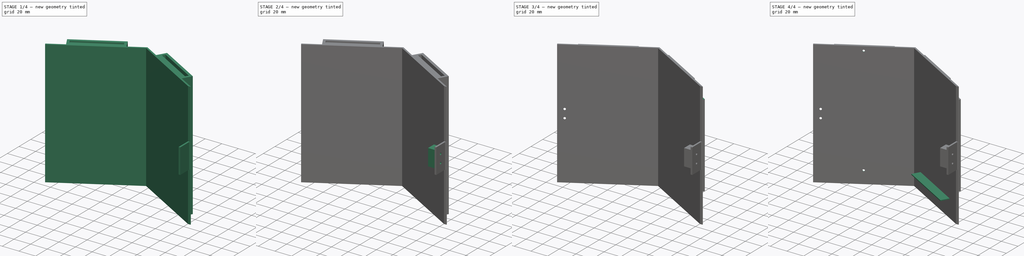
[diagram: build sequence overview — one tinted view per stage of 4, left to right]
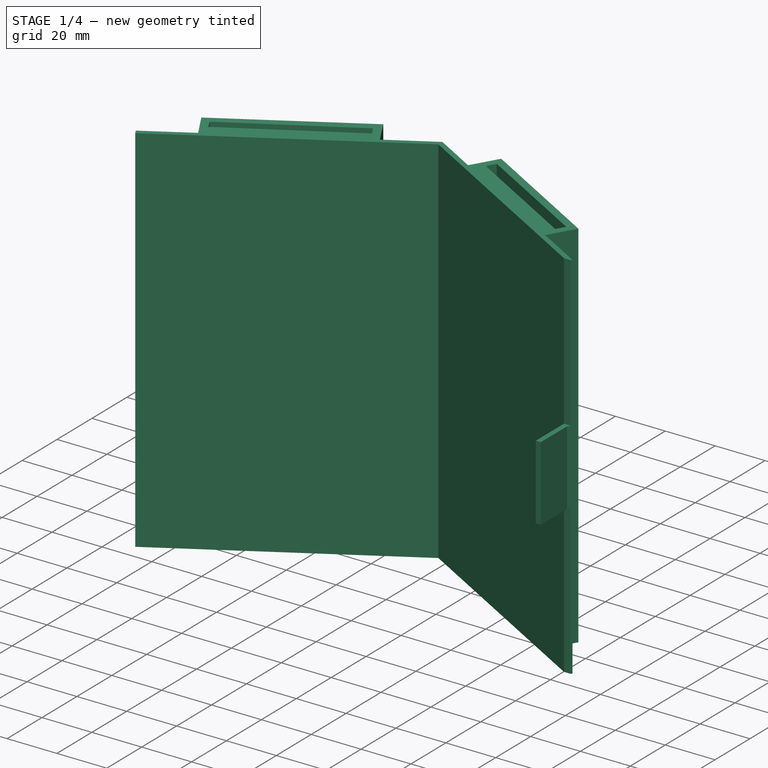
[diagram: stage 1 of 4 — iso view after this stage's code; geometry added in this stage tinted green]
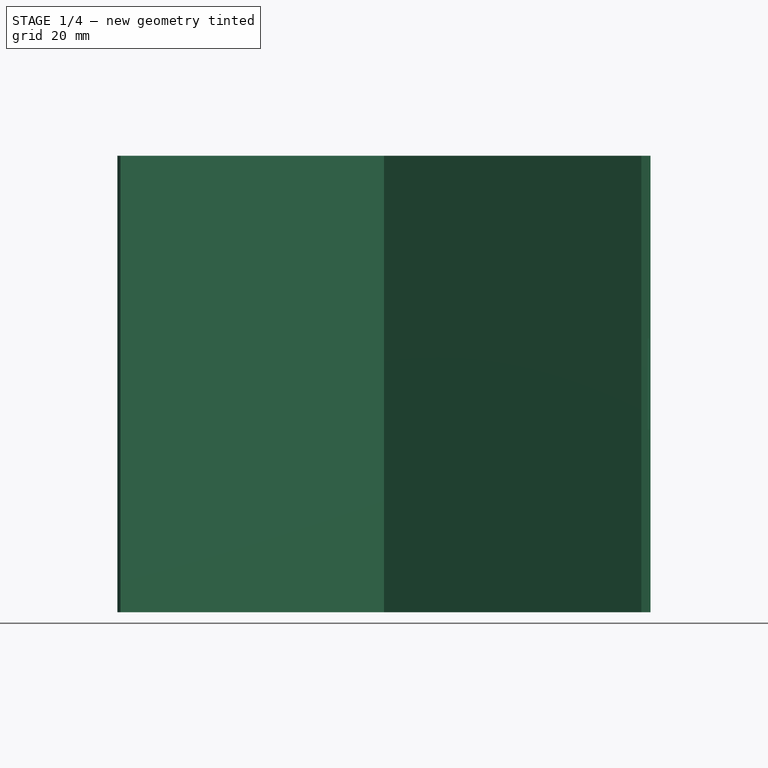
[diagram: stage 1 of 4 — front view after this stage's code; geometry added in this stage tinted green]
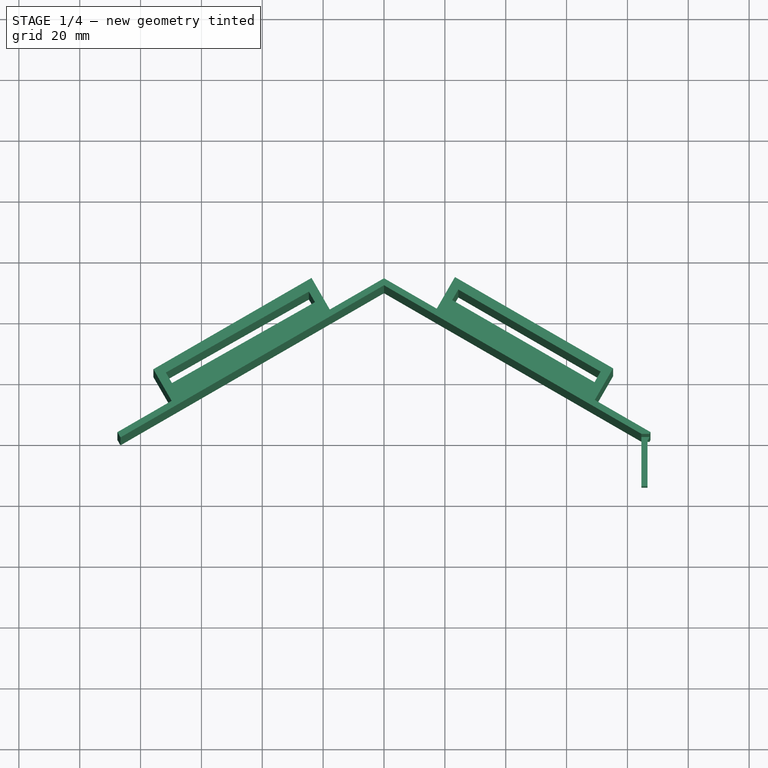
[diagram: stage 1 of 4 — top view after this stage's code; geometry added in this stage tinted green]
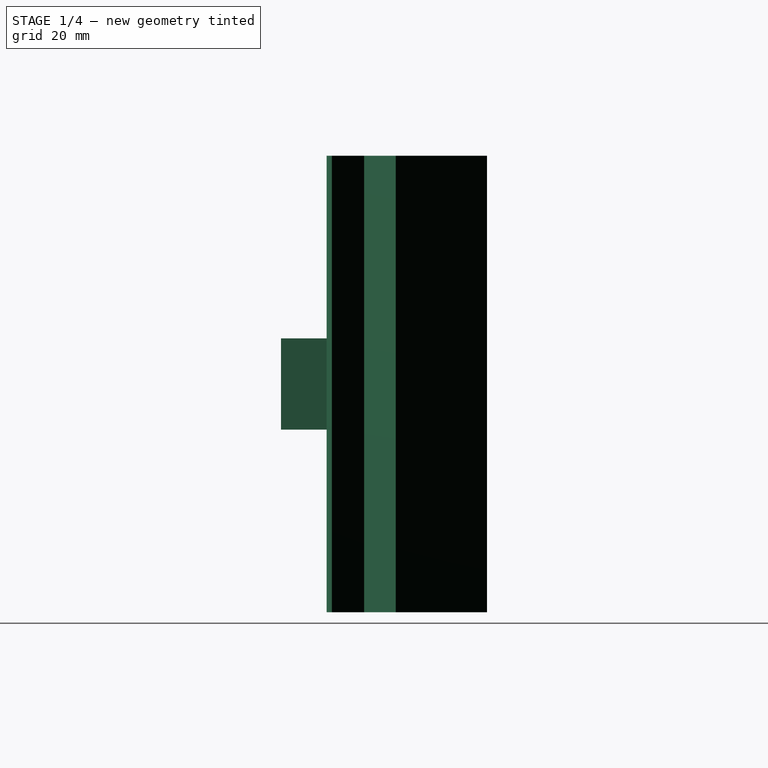
[diagram: stage 1 of 4 — right view after this stage's code; geometry added in this stage tinted green]
FCSTD DOCUMENT  (FreeCAD 0.20R29177 +426 (Git))
Label: classifier_middle_verPartial3
License: All rights reserved
LicenseURL: https://en.wikipedia.org/wiki/All_rights_reserved
objects: Sketcher::SketchObject×11, PartDesign::Pad×3, PartDesign::Pocket×3, PartDesign::CoordinateSystem×3, PartDesign::Hole×3, PartDesign::Body×1
note: 33 computed .brp shape members not serialized (recipe doc carries the construction recipe); baked Part::Feature solids carry a one-line shape summary decoded from their .brp

FEATURE [Sketcher::SketchObject] Sketch
  FullyConstrained = false
  MapMode = 5
  Support = -> [XY_Plane]
  sketch-geometry (40):
    g0: LineSegment StartX=84.6025 StartY=1.1547 StartZ=0 EndX=0 EndY=50 EndZ=0
    g1: LineSegment StartX=0 StartY=50 StartZ=0 EndX=-86.6025 EndY=-1.42e-14 EndZ=0
    g2: Circle CenterX=-2.18504 CenterY=-45.0607 CenterZ=0 NormalX=0 NormalY=0 NormalZ=1 AngleXU=0 Radius=95.0858
    g3: LineSegment StartX=87.6025 StartY=1.73205 StartZ=0 EndX=69.282 EndY=12.3094 EndZ=0
    g4: LineSegment StartX=0 StartY=52.3094 StartZ=0 EndX=-17.8205 EndY=42.0207 EndZ=0
    g5: Circle CenterX=-2.18504 CenterY=-45.0607 CenterZ=0 NormalX=0 NormalY=0 NormalZ=1 AngleXU=0 Radius=97.3946
    g6: GeomPoint X=-43.8013 Y=27.0207 Z=0
    g7: LineSegment StartX=-69.782 StartY=12.0207 StartZ=0 EndX=-75.782 EndY=22.413 EndZ=0
    g8: LineSegment StartX=-75.782 StartY=22.413 StartZ=0 EndX=-23.8205 EndY=52.413 EndZ=0
    g9: LineSegment StartX=-23.8205 StartY=52.413 StartZ=0 EndX=-17.8205 EndY=42.0207 EndZ=0
    g10: LineSegment StartX=-71.684 StartY=21.315 StartZ=0 EndX=-69.684 EndY=17.8509 EndZ=0
    g11: LineSegment StartX=-69.684 StartY=17.8509 StartZ=0 EndX=-22.6865 EndY=44.4489 EndZ=0
    g12: LineSegment StartX=-22.6865 StartY=44.4489 StartZ=0 EndX=-24.6865 EndY=47.913 EndZ=0
    g13: LineSegment StartX=-24.6865 StartY=47.913 StartZ=0 EndX=-71.684 EndY=21.315 EndZ=0
    g14: LineSegment StartX=-23.8205 StartY=52.413 StartZ=0 EndX=-22.0885 EndY=49.413 EndZ=0
    g15: LineSegment StartX=-26.4186 StartY=50.913 StartZ=0 EndX=-24.6865 EndY=47.913 EndZ=0
    g16: LineSegment StartX=-24.6865 StartY=47.913 StartZ=0 EndX=-22.0885 EndY=49.413 EndZ=0
    g17: LineSegment StartX=-23.8205 StartY=52.413 StartZ=0 EndX=-26.4186 EndY=50.913 EndZ=0
    g18: LineSegment StartX=-71.684 StartY=21.315 StartZ=0 EndX=-73.184 EndY=23.913 EndZ=0
    g19: LineSegment StartX=-71.684 StartY=21.315 StartZ=0 EndX=-74.282 EndY=19.815 EndZ=0
    g20: LineSegment StartX=75.282 StartY=22.7017 StartZ=0 EndX=69.282 EndY=12.3094 EndZ=0
    g21: LineSegment StartX=23.3205 StartY=52.7017 StartZ=0 EndX=75.282 EndY=22.7017 EndZ=0
    g22: LineSegment StartX=72.684 StartY=24.2017 StartZ=0 EndX=71.184 EndY=21.6036 EndZ=0
    g23: LineSegment StartX=71.184 StartY=21.6036 StartZ=0 EndX=73.782 EndY=20.1036 EndZ=0
    g24: LineSegment StartX=69.184 StartY=18.1395 StartZ=0 EndX=71.184 EndY=21.6036 EndZ=0
    g25: LineSegment StartX=71.184 StartY=21.6036 StartZ=0 EndX=24.4186 EndY=48.6036 EndZ=0
    g26: LineSegment StartX=22.4186 StartY=45.1395 StartZ=0 EndX=69.184 EndY=18.1395 EndZ=0
    g27: LineSegment StartX=24.4186 StartY=48.6036 StartZ=0 EndX=22.4186 EndY=45.1395 EndZ=0
    g28: LineSegment StartX=24.4186 StartY=48.6036 StartZ=0 EndX=25.9186 EndY=51.2017 EndZ=0
    g29: LineSegment StartX=24.4186 StartY=48.6036 StartZ=0 EndX=21.8205 EndY=50.1036 EndZ=0
    g30: LineSegment StartX=17.3205 StartY=42.3094 StartZ=0 EndX=23.3205 EndY=52.7017 EndZ=0
    g31: LineSegment StartX=17.3205 StartY=42.3094 StartZ=0 EndX=0 EndY=52.3094 EndZ=0
    g32: LineSegment StartX=86.6025 StartY=0 StartZ=0 EndX=86.6025 EndY=-15 EndZ=0
    g33: LineSegment StartX=86.6025 StartY=-15 StartZ=0 EndX=84.6025 EndY=-15 EndZ=0
    g34: LineSegment StartX=84.6025 StartY=-15 StartZ=0 EndX=84.6025 EndY=1.1547 EndZ=0
    g35: LineSegment StartX=-86.6025 StartY=0 StartZ=0 EndX=-87.6025 EndY=1.73205 EndZ=0
    g36: LineSegment StartX=-87.6025 StartY=1.73205 StartZ=0 EndX=-69.782 EndY=12.0207 EndZ=0
    g37: LineSegment StartX=84.6025 StartY=1.1547 StartZ=0 EndX=86.6025 EndY=0 EndZ=0
    g38: LineSegment StartX=87.6025 StartY=1.73205 StartZ=0 EndX=86.6025 EndY=0 EndZ=0
    g39: LineSegment StartX=0 StartY=50 StartZ=0 EndX=1 EndY=51.7321 EndZ=0
  constraints (114):
    c: PointOnObject(g0,g2)
    c: Coincident(g31,g4)
    c: PointOnObject(g31,g5)
    c: PointOnObject(g31,g-2)
    c: Parallel(g1,g4)
    c: Coincident(g2,g5)
    c: Coincident(g7,g8)
    c: Coincident(g8,g9)
    c: Parallel(g7,g9)
    c: Distance(g9) = 12
    c: Equal(g7,g9)
    c: Distance(g8) = 60
    c: Symmetric(g9,g7,g6)
    c: Coincident(g10,g11)
    c: Coincident(g11,g12)
    c: Coincident(g13,g10)
    c: Parallel(g12,g10)
    c: Parallel(g10,g7)
    c: Parallel(g11,g13)
    c: Coincident(g14,g8)
    c: PointOnObject(g15,g8)
    c: Coincident(g15,g12)
    c: Equal(g15,g14)
    c: Coincident(g13,g12)
    c: Parallel(g15,g14)
    c: DistanceY(g14,g14) = 3
    c: Coincident(g16,g12)
    c: Coincident(g16,g14)
    c: Coincident(g17,g8)
    c: Distance(g17) = 3
    c: Equal(g16,g17)
    c: Parallel(g17,g16)
    c: PointOnObject(g16,g9)
    c: Coincident(g18,g10)
    c: PointOnObject(g18,g8)
    c: Coincident(g19,g10)
    c: PointOnObject(g19,g7)
    c: Parallel(g18,g7)
    c: Parallel(g8,g19)
    c: Distance(g18) = 3
    c: Distance(g19) = 3
    c: Distance(g12) = 4
    c: Coincident(g30,g21)
    c: Coincident(g21,g20)
    c: Parallel(g30,g20)
    c: Distance(g20) = 12
    c: Equal(g30,g20)
    c: Distance(g21) = 60
    c: Coincident(g27,g26)
    c: Coincident(g26,g24)
    c: Coincident(g25,g27)
    c: Parallel(g24,g27)
    c: Parallel(g27,g30)
    c: Parallel(g26,g25)
    c: PointOnObject(g22,g21)
    c: Coincident(g22,g24)
    c: Coincident(g25,g24)
    c: Coincident(g23,g24)
    c: PointOnObject(g23,g20)
    c: Coincident(g28,g27)
    c: PointOnObject(g28,g21)
    c: Coincident(g29,g27)
    c: PointOnObject(g29,g30)
    c: Parallel(g28,g30)
    c: Parallel(g21,g29)
    c: Distance(g28) = 3
    c: Distance(g29) = 3
    c: Distance(g24) = 4
    c: Parallel(g23,g21)
    c: Parallel(g22,g20)
    c: Parallel(g25,g21)
    c: Equal(g23,g29)
    c: Vertical(g32)
    c: Coincident(g33,g32)
    c: Horizontal(g33)
    c: Coincident(g34,g33)
    c: Vertical(g34)
    c: Coincident(g0,g34)
    c: Distance(g31) = 20
    c: Distance(g32,g0) = 100
    c: Perpendicular(g8,g9)
    c: Coincident(g35,g1)
    c: Distance(g35) = 2
    c: Perpendicular(g35,g1)
    c: PointOnObject(g35,g5)
    c: Coincident(g4,g9)
    c: Coincident(g36,g35)
    c: Coincident(g36,g7)
    c: Perpendicular(g35,g36)
    c: Equal(g4,g36)
    c: Coincident(g37,g0)
    c: Coincident(g38,g3)
    c: Coincident(g38,g37)
    c: Distance(g38) = 2
    c: Perpendicular(g3,g20)
    c: Coincident(g3,g20)
    c: Parallel(g37,g3)
    c: Parallel(g0,g31)
    c: Coincident(g30,g31)
    c: Coincident(g0,g1)
    c: PointOnObject(g0,g-2)
    c: Perpendicular(g24,g25)
    c: PointOnObject(g38,g-1)
    c: Perpendicular(g37,g38)
    c: Coincident(g39,g0)
    c: PointOnObject(g39,g31)
    c: Perpendicular(g39,g0)
    c: Distance(g39) = 2
    c: Angle(g-2,g0) = 1.0472
    c: Coincident(g32,g38)
    c: PointOnObject(g1,g-1)
    c: Distance(g1) = 100
    c: DistanceX(g33,g33) = 2
    c: DistanceY(g32,g32) = 15
FEATURE [PartDesign::Pad] Pad
  Direction = (0,0,1)
  Length = 150
  Length2 = 10
  Profile = -> Sketch
  ReferenceAxis = -> Sketch [N_Axis]
  Refine = true
  Type = 0
FEATURE [Sketcher::SketchObject] Sketch001
  ExternalGeometry = -> [Pad]
  FullyConstrained = false
  MapMode = 5
  Placement = pos=(84.6025,0,0) rot=(0.57735,-0.57735,-0.57735;2.0944rad)
  Support = -> [Pad]
  sketch-geometry (8):
    g0: LineSegment StartX=31.3251 StartY=0 StartZ=0 EndX=-1.1547 EndY=0 EndZ=0
    g1: LineSegment StartX=-1.1547 StartY=0 StartZ=0 EndX=-1.1547 EndY=60 EndZ=0
    g2: LineSegment StartX=-1.1547 StartY=60 StartZ=0 EndX=31.3251 EndY=60 EndZ=0
    g3: LineSegment StartX=31.3251 StartY=60 StartZ=0 EndX=31.3251 EndY=0 EndZ=0
    g4: LineSegment StartX=-1.1547 StartY=150 StartZ=0 EndX=35.4561 EndY=150 EndZ=0
    g5: LineSegment StartX=35.4561 StartY=150 StartZ=0 EndX=35.4561 EndY=90 EndZ=0
    g6: LineSegment StartX=35.4561 StartY=90 StartZ=0 EndX=-1.1547 EndY=90 EndZ=0
    g7: LineSegment StartX=-1.1547 StartY=90 StartZ=0 EndX=-1.1547 EndY=150 EndZ=0
  constraints (21):
    c: Coincident(g0,g1)
    c: Coincident(g1,g2)
    c: Coincident(g2,g3)
    c: Coincident(g3,g0)
    c: Horizontal(g0)
    c: Horizontal(g2)
    c: Vertical(g1)
    c: Vertical(g3)
    c: PointOnObject(g0,g-1)
    c: PointOnObject(g1,g-6)
    c: DistanceY(g3,g3) = 60
    c: Coincident(g4,g5)
    c: Coincident(g5,g6)
    c: Coincident(g6,g7)
    c: Coincident(g7,g4)
    c: Horizontal(g4)
    c: Horizontal(g6)
    c: Vertical(g5)
    c: Vertical(g7)
    c: Coincident(g4,g-6)
    c: DistanceY(g5,g5) = 60
FEATURE [PartDesign::Pocket] Pocket
  BaseFeature = -> Pad
  Direction = (1,0,0)
  Length = 5
  Length2 = 5
  Profile = -> Sketch001
  ReferenceAxis = -> Sketch001 [N_Axis]
  Type = 0
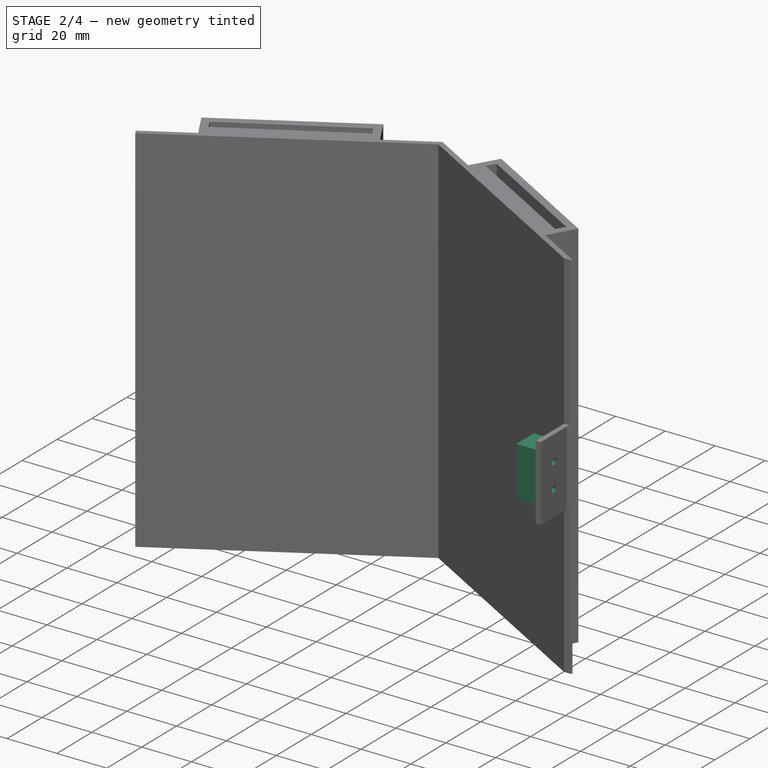
[diagram: stage 2 of 4 — iso view after this stage's code; geometry added in this stage tinted green]
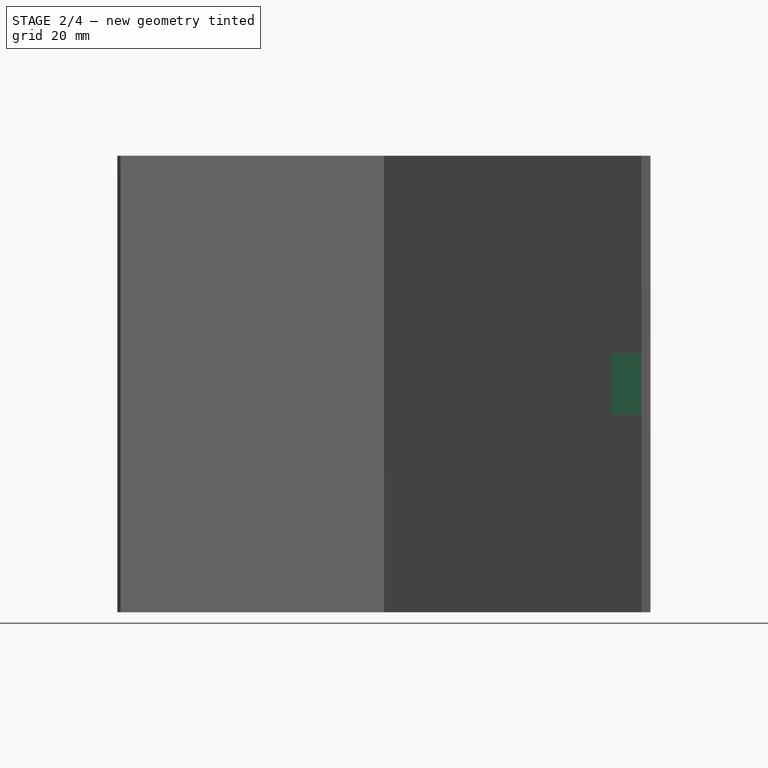
[diagram: stage 2 of 4 — front view after this stage's code; geometry added in this stage tinted green]
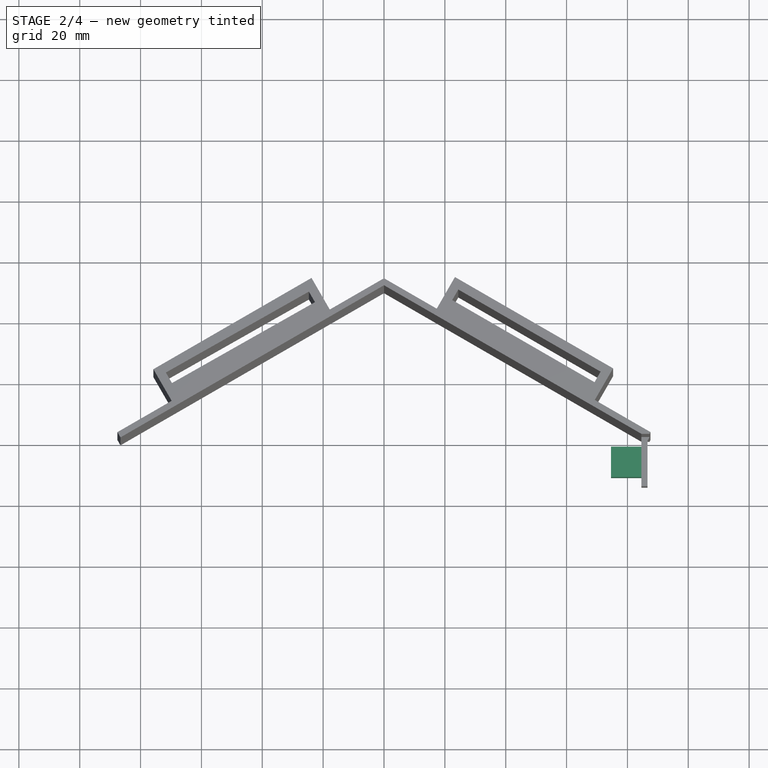
[diagram: stage 2 of 4 — top view after this stage's code; geometry added in this stage tinted green]
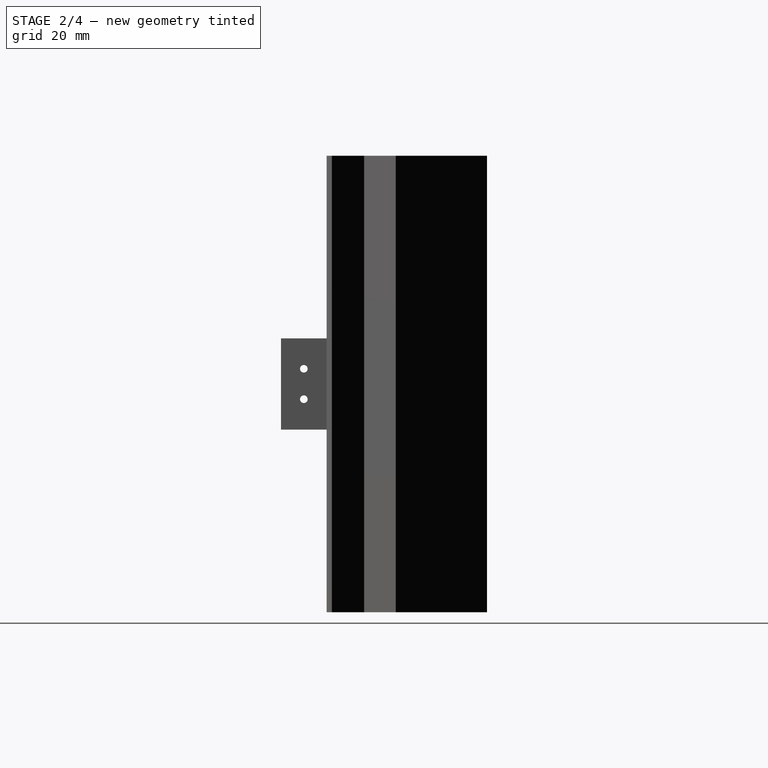
[diagram: stage 2 of 4 — right view after this stage's code; geometry added in this stage tinted green]
FEATURE [PartDesign::CoordinateSystem] LCS_1
  AttacherType = Attacher::AttachEngine3D
  AttachmentOffset = pos=(0,0,75) rot=(0,0,1;2.0944rad)
  MapMode = 45
  Placement = pos=(0,50,150) rot=(0,0,1;2.0944rad)
  Support = -> [Pocket]
FEATURE [Sketcher::SketchObject] Sketch002
  ExternalGeometry = -> [Pocket]
  FullyConstrained = true
  MapMode = 5
  Placement = pos=(86.6025,0,0) rot=(0.57735,0.57735,0.57735;2.0944rad)
  Support = -> [Pocket]
  sketch-geometry (3):
    g0: Circle CenterX=-7.5 CenterY=80 CenterZ=0 NormalX=0 NormalY=0 NormalZ=1 AngleXU=0 Radius=3
    g1: Circle CenterX=-7.5 CenterY=70 CenterZ=0 NormalX=0 NormalY=0 NormalZ=1 AngleXU=0 Radius=3
    g2: GeomPoint X=-7.5 Y=75 Z=0
  constraints (9):
    c: Symmetric(g-3,g-4,g2)
    c: Symmetric(g0,g1,g2)
    c: DistanceY(g-4,g1) = 10
    c: Equal(g1,g0)
    c: Diameter(g0) = 6
    c: Vertical(g1,g0)
    c: DistanceX(g1,g-4) = 7.5
    c: DistanceY(g-1,g1) = 70
    c: DistanceY(g1,g0) = 10
FEATURE [Sketcher::SketchObject] Sketch003
  ExternalGeometry = -> [Pocket]
  FullyConstrained = true
  MapMode = 5
  Placement = pos=(-22.6506,39.2321,0) rot=(-0.186157,0.694747,0.694747;3.50969rad)
  Support = -> [Pocket]
  sketch-geometry (2):
    g0: Circle CenterX=67.5 CenterY=80 CenterZ=0 NormalX=0 NormalY=0 NormalZ=1 AngleXU=0 Radius=3
    g1: Circle CenterX=67.5 CenterY=70 CenterZ=0 NormalX=0 NormalY=0 NormalZ=1 AngleXU=0 Radius=3
  constraints (6):
    c: Equal(g0,g1)
    c: Diameter(g0) = 6
    c: Vertical(g0,g1)
    c: DistanceX(g1,g-4) = 7.5
    c: DistanceY(g-4,g1) = 70
    c: DistanceY(g1,g0) = 10
FEATURE [Sketcher::SketchObject] Sketch004
  ExternalGeometry = -> [Pocket]
  FullyConstrained = true
  MapMode = 5
  Placement = pos=(-21.6506,37.5,0) rot=(0.935113,0.250563,0.250563;1.63783rad)
  Support = -> [Pocket]
  sketch-geometry (7):
    g0: GeomPoint X=-67.5 Y=70 Z=0
    g1: GeomPoint X=-67.5 Y=80 Z=0
    g2: GeomPoint X=-67.5 Y=75 Z=0
    g3: LineSegment StartX=-72.5 StartY=85 StartZ=0 EndX=-62.5 EndY=85 EndZ=0
    g4: LineSegment StartX=-62.5 StartY=85 StartZ=0 EndX=-62.5 EndY=65 EndZ=0
    g5: LineSegment StartX=-62.5 StartY=65 StartZ=0 EndX=-72.5 EndY=65 EndZ=0
    g6: LineSegment StartX=-72.5 StartY=65 StartZ=0 EndX=-72.5 EndY=85 EndZ=0
  constraints (16):
    c: Vertical(g0,g1)
    c: DistanceY(g0,g1) = 10
    c: DistanceY(g-1,g0) = 70
    c: Symmetric(g1,g0,g2)
    c: DistanceX(g-3,g2) = 7.5
    c: Coincident(g3,g4)
    c: Coincident(g4,g5)
    c: Coincident(g5,g6)
    c: Coincident(g6,g3)
    c: Horizontal(g3)
    c: Horizontal(g5)
    c: Vertical(g4)
    c: Vertical(g6)
    c: Symmetric(g4,g3,g2)
    c: DistanceY(g4,g4) = 20
    c: DistanceX(g3,g3) = 10
FEATURE [Sketcher::SketchObject] Sketch005
  ExternalGeometry = -> [Pocket]
  FullyConstrained = false
  MapMode = 5
  Placement = pos=(28.6506,49.6244,0) rot=(0.186157,0.694747,0.694747;2.77349rad)
  Support = -> [Pocket]
  sketch-geometry (8):
    g0: LineSegment StartX=-63.2639 StartY=150 StartZ=0 EndX=17.1472 EndY=150 EndZ=0
    g1: LineSegment StartX=17.1472 StartY=150 StartZ=0 EndX=17.1472 EndY=125 EndZ=0
    g2: LineSegment StartX=17.1472 StartY=125 StartZ=0 EndX=-63.2639 EndY=125 EndZ=0
    g3: LineSegment StartX=-63.2639 StartY=125 StartZ=0 EndX=-63.2639 EndY=150 EndZ=0
    g4: LineSegment StartX=-62.0783 StartY=25 StartZ=0 EndX=16.1272 EndY=25 EndZ=0
    g5: LineSegment StartX=16.1272 StartY=25 StartZ=0 EndX=16.1272 EndY=0 EndZ=0
    g6: LineSegment StartX=16.1272 StartY=0 StartZ=0 EndX=-62.0783 EndY=0 EndZ=0
    g7: LineSegment StartX=-62.0783 StartY=0 StartZ=0 EndX=-62.0783 EndY=25 EndZ=0
  constraints (20):
    c: Coincident(g0,g1)
    c: Coincident(g1,g2)
    c: Coincident(g2,g3)
    c: Coincident(g3,g0)
    c: Horizontal(g0)
    c: Horizontal(g2)
    c: Vertical(g1)
    c: Vertical(g3)
    c: Coincident(g4,g5)
    c: Coincident(g5,g6)
    c: Coincident(g6,g7)
    c: Coincident(g7,g4)
    c: Horizontal(g4)
    c: Horizontal(g6)
    c: Vertical(g5)
    c: Vertical(g7)
    c: Horizontal(g-3,g0)
    c: DistanceY(g1,g1) = 25
    c: DistanceY(g5,g5) = 25
    c: Horizontal(g5,g-1)
FEATURE [Sketcher::SketchObject] Sketch006
  ExternalGeometry = -> [Pocket]
  FullyConstrained = false
  MapMode = 5
  Placement = pos=(-28.6506,49.6244,0) rot=(-0.186157,0.694747,0.694747;3.50969rad)
  Support = -> [Pocket]
  sketch-geometry (8):
    g0: LineSegment StartX=-12.5353 StartY=150 StartZ=0 EndX=61.9692 EndY=150 EndZ=0
    g1: LineSegment StartX=61.9692 StartY=150 StartZ=0 EndX=61.9692 EndY=125 EndZ=0
    g2: LineSegment StartX=61.9692 StartY=125 StartZ=0 EndX=-12.5353 EndY=125 EndZ=0
    g3: LineSegment StartX=-12.5353 StartY=125 StartZ=0 EndX=-12.5353 EndY=150 EndZ=0
    g4: LineSegment StartX=-12.3717 StartY=25 StartZ=0 EndX=60.4768 EndY=25 EndZ=0
    g5: LineSegment StartX=60.4768 StartY=25 StartZ=0 EndX=60.4768 EndY=0 EndZ=0
    g6: LineSegment StartX=60.4768 StartY=0 StartZ=0 EndX=-12.3717 EndY=0 EndZ=0
    g7: LineSegment StartX=-12.3717 StartY=0 StartZ=0 EndX=-12.3717 EndY=25 EndZ=0
  constraints (20):
    c: Coincident(g0,g1)
    c: Coincident(g1,g2)
    c: Coincident(g2,g3)
    c: Coincident(g3,g0)
    c: Horizontal(g0)
    c: Horizontal(g2)
    c: Vertical(g1)
    c: Vertical(g3)
    c: Coincident(g4,g5)
    c: Coincident(g5,g6)
    c: Coincident(g6,g7)
    c: Coincident(g7,g4)
    c: Horizontal(g4)
    c: Horizontal(g6)
    c: Vertical(g5)
    c: Vertical(g7)
    c: Equal(g5,g1)
    c: DistanceY(g1,g1) = 25
    c: Horizontal(g-1,g5)
    c: Horizontal(g0,g-3)
FEATURE [Sketcher::SketchObject] Sketch007
  ExternalGeometry = -> [Pocket]
  FullyConstrained = true
  MapMode = 5
  Placement = pos=(84.6025,0,0) rot=(0.57735,-0.57735,-0.57735;2.0944rad)
  Support = -> [Pocket]
  sketch-geometry (5):
    g0: LineSegment StartX=1.92265 StartY=85 StartZ=0 EndX=11.9226 EndY=85 EndZ=0
    g1: LineSegment StartX=11.9226 StartY=85 StartZ=0 EndX=11.9226 EndY=65 EndZ=0
    g2: LineSegment StartX=11.9226 StartY=65 StartZ=0 EndX=1.92265 EndY=65 EndZ=0
    g3: LineSegment StartX=1.92265 StartY=65 StartZ=0 EndX=1.92265 EndY=85 EndZ=0
    g4: GeomPoint X=6.92265 Y=75 Z=0
  constraints (12):
    c: Coincident(g0,g1)
    c: Coincident(g1,g2)
    c: Coincident(g2,g3)
    c: Coincident(g3,g0)
    c: Horizontal(g0)
    c: Horizontal(g2)
    c: Vertical(g1)
    c: Vertical(g3)
    c: Symmetric(g-3,g-4,g4)
    c: Symmetric(g0,g2,g4)
    c: DistanceY(g1,g1) = 20
    c: DistanceX(g0,g0) = 10
FEATURE [Sketcher::SketchObject] Sketch009
  ExternalGeometry = -> [Pocket]
  FullyConstrained = true
  MapMode = 5
  Placement = pos=(21.6506,37.5,0) rot=(0.935113,-0.250563,-0.250563;1.63783rad)
  Support = -> [Pocket]
  expr: Constraints[1] = Sketch008.Constraints[1]
  expr: Constraints[4] = Sketch008.Constraints[3]
  expr: Constraints[5] = Sketch008.Constraints[4]
  sketch-geometry (7):
    g0: Circle CenterX=23.8453 CenterY=145 CenterZ=0 NormalX=0 NormalY=0 NormalZ=1 AngleXU=0 Radius=3
    g1: Circle CenterX=23.8453 CenterY=15 CenterZ=0 NormalX=0 NormalY=0 NormalZ=1 AngleXU=0 Radius=3
    g2: GeomPoint X=23.8453 Y=150 Z=0
    g3: LineSegment StartX=-10 StartY=21.5 StartZ=0 EndX=57.6906 EndY=21.5 EndZ=0
    g4: LineSegment StartX=57.6906 StartY=21.5 StartZ=0 EndX=57.6906 EndY=20.5 EndZ=0
    g5: LineSegment StartX=57.6906 StartY=20.5 StartZ=0 EndX=-10 EndY=20.5 EndZ=0
    g6: LineSegment StartX=-10 StartY=20.5 StartZ=0 EndX=-10 EndY=21.5 EndZ=0
  constraints (19):
    c: Equal(g0,g1)
    c: Diameter(g0) = 6
    c: Symmetric(g-3,g-3,g2)
    c: Vertical(g2,g0)
    c: DistanceY(g0,g2) = 5
    c: DistanceY(g-1,g1) = 15
    c: Vertical(g1,g2)
    c: Coincident(g3,g4)
    c: Coincident(g4,g5)
    c: Coincident(g5,g6)
    c: Coincident(g6,g3)
    c: Horizontal(g3)
    c: Horizontal(g5)
    c: Vertical(g4)
    c: Vertical(g6)
    c: DistanceX(g3,g-4) = 15
    c: DistanceX(g-5,g3) = 15
    c: DistanceY(g1,g4) = 5.5
    c: DistanceY(g4,g4) = 1
FEATURE [PartDesign::Pad] Pad001
  BaseFeature = -> Pocket
  Direction = (-1,0,0)
  Length = 10
  Length2 = 10
  Profile = -> Sketch007
  ReferenceAxis = -> Sketch007 [N_Axis]
  Type = 0
FEATURE [PartDesign::Hole] Hole
  BaseFeature = -> Pad001
  CustomThreadClearance = 0
  Depth = 25
  DepthType = 0
  Diameter = 2.5
  DrillForDepth = false
  DrillPoint = 1
  DrillPointAngle = 118
  HoleCutCountersinkAngle = 90
  HoleCutCustomValues = false
  HoleCutDepth = 0
  HoleCutDiameter = 6.1
  HoleCutType = 0
  ModelThread = false
  Profile = -> Sketch002
  Tapered = false
  TaperedAngle = 90
  ThreadClass = 0
  ThreadDepth = 25
  ThreadDepthType = 0
  ThreadDirection = 0
  ThreadFit = 0
  ThreadSize = 9
  ThreadType = 1
  Threaded = true
  UseCustomThreadClearance = false
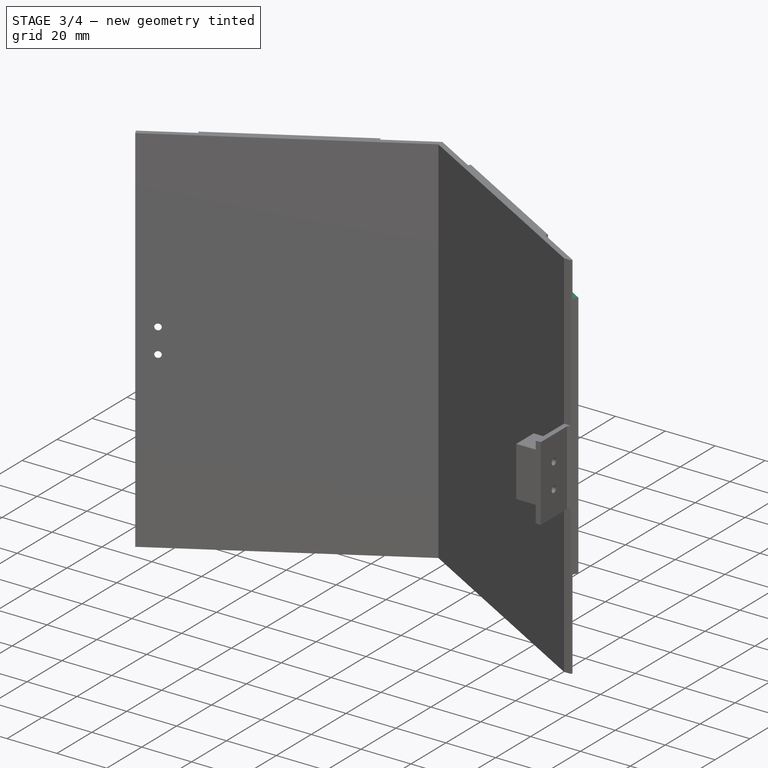
[diagram: stage 3 of 4 — iso view after this stage's code; geometry added in this stage tinted green]
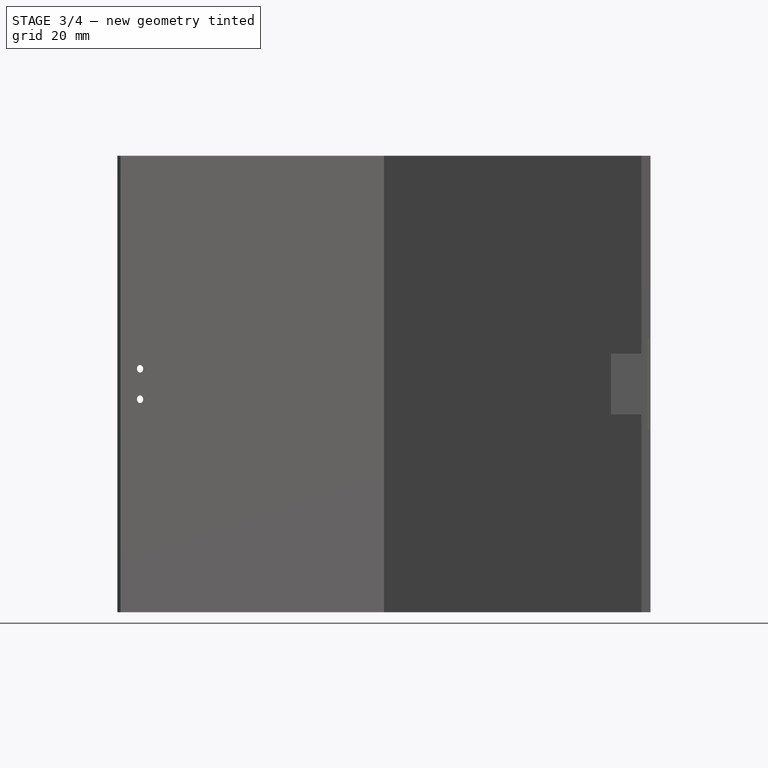
[diagram: stage 3 of 4 — front view after this stage's code; geometry added in this stage tinted green]
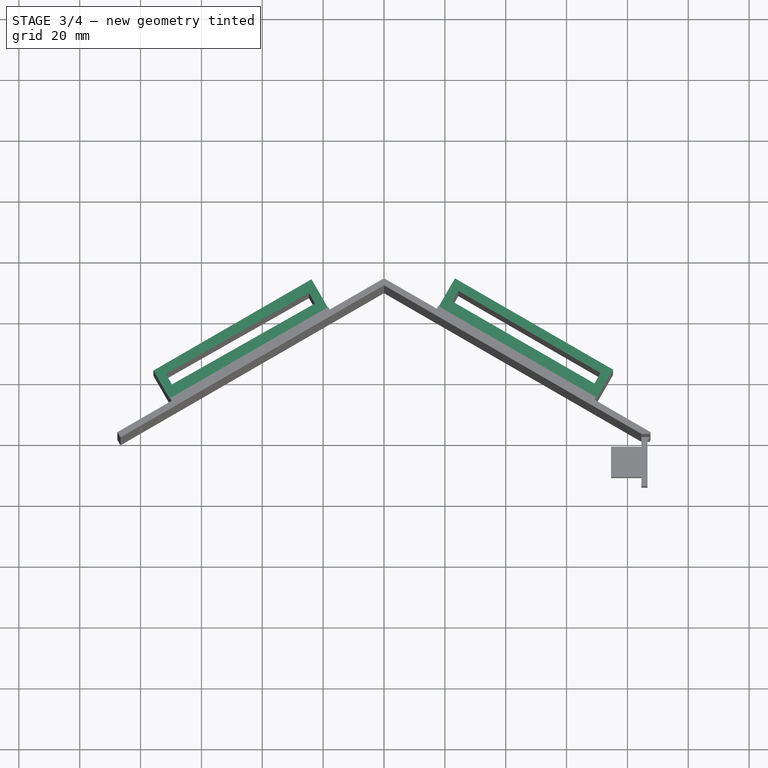
[diagram: stage 3 of 4 — top view after this stage's code; geometry added in this stage tinted green]
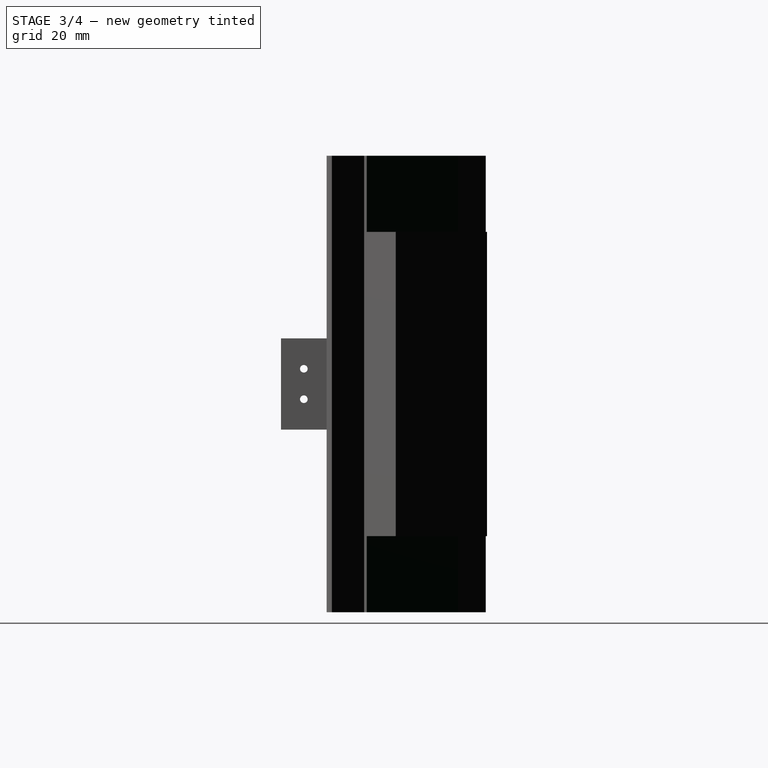
[diagram: stage 3 of 4 — right view after this stage's code; geometry added in this stage tinted green]
FEATURE [PartDesign::Hole] Hole001
  BaseFeature = -> Hole
  CustomThreadClearance = 0
  Depth = 25
  DepthType = 0
  Diameter = 2.5
  DrillForDepth = false
  DrillPoint = 1
  DrillPointAngle = 118
  HoleCutCountersinkAngle = 90
  HoleCutCustomValues = false
  HoleCutDepth = 0
  HoleCutDiameter = 6.1
  HoleCutType = 2
  ModelThread = false
  Profile = -> Sketch003
  Tapered = false
  TaperedAngle = 90
  ThreadClass = 0
  ThreadDepth = 25
  ThreadDepthType = 0
  ThreadDirection = 0
  ThreadFit = 0
  ThreadSize = 9
  ThreadType = 1
  Threaded = true
  UseCustomThreadClearance = false
FEATURE [PartDesign::Pocket] Pocket001
  BaseFeature = -> Hole001
  Direction = (0.5,-0.866025,-1e-16)
  Length = 11
  Length2 = 5
  Profile = -> Sketch006
  ReferenceAxis = -> Sketch006 [N_Axis]
  Type = 0
FEATURE [PartDesign::Pocket] Pocket002
  BaseFeature = -> Pocket001
  Direction = (-0.5,-0.866025,0)
  Length = 11
  Length2 = 5
  Profile = -> Sketch005
  ReferenceAxis = -> Sketch005 [N_Axis]
  Type = 0
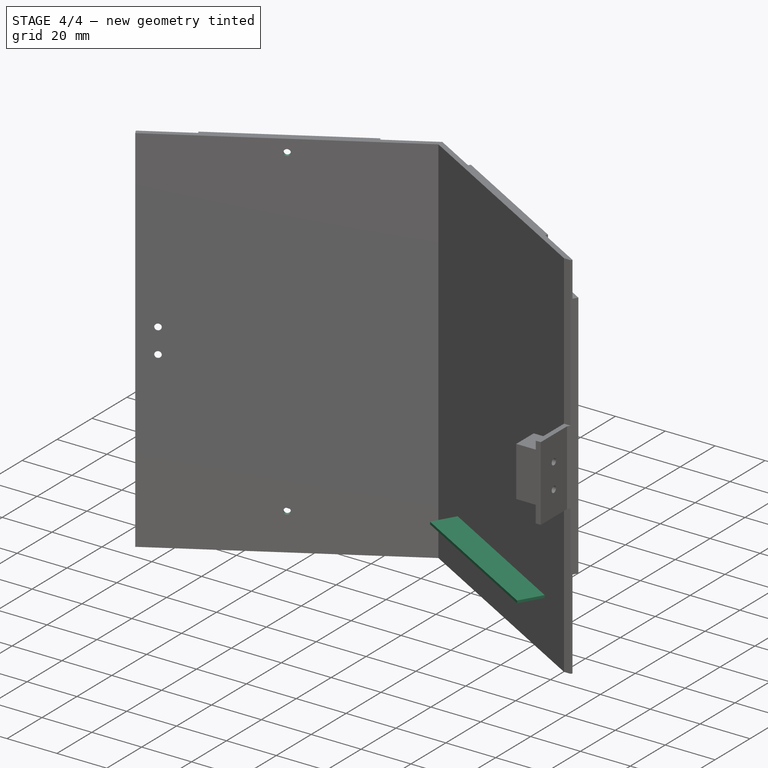
[diagram: stage 4 of 4 — iso view after this stage's code; geometry added in this stage tinted green]
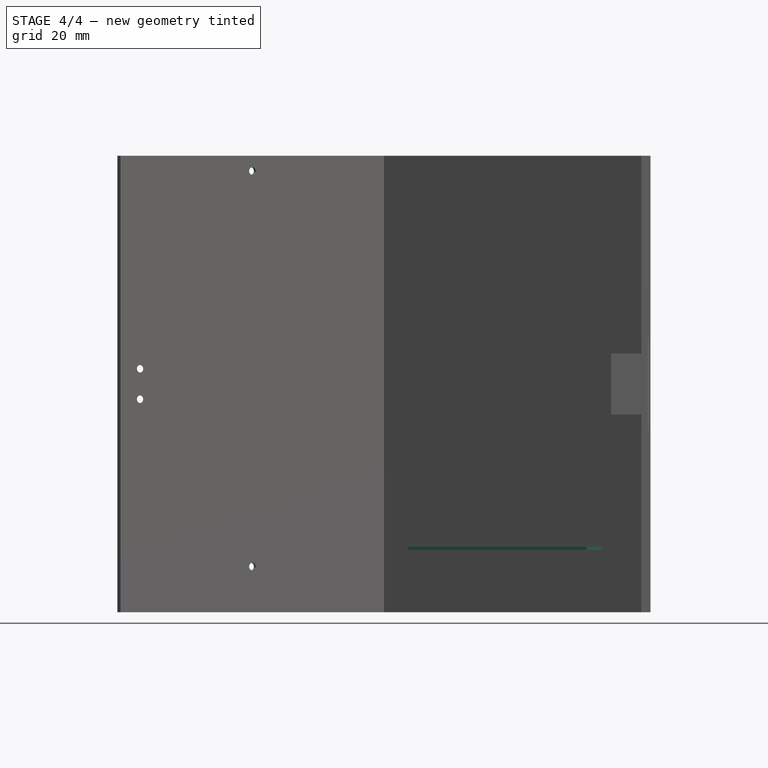
[diagram: stage 4 of 4 — front view after this stage's code; geometry added in this stage tinted green]
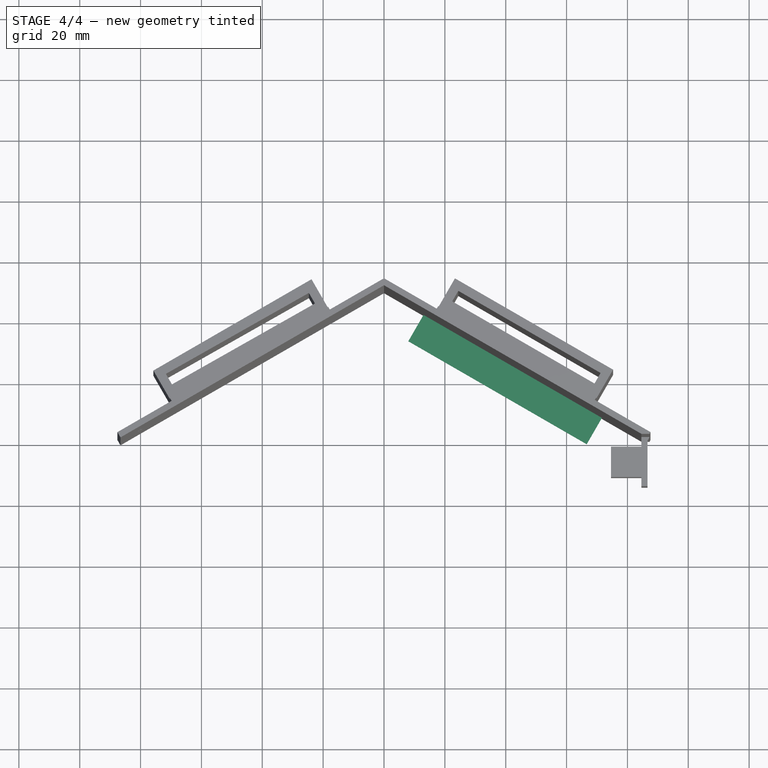
[diagram: stage 4 of 4 — top view after this stage's code; geometry added in this stage tinted green]
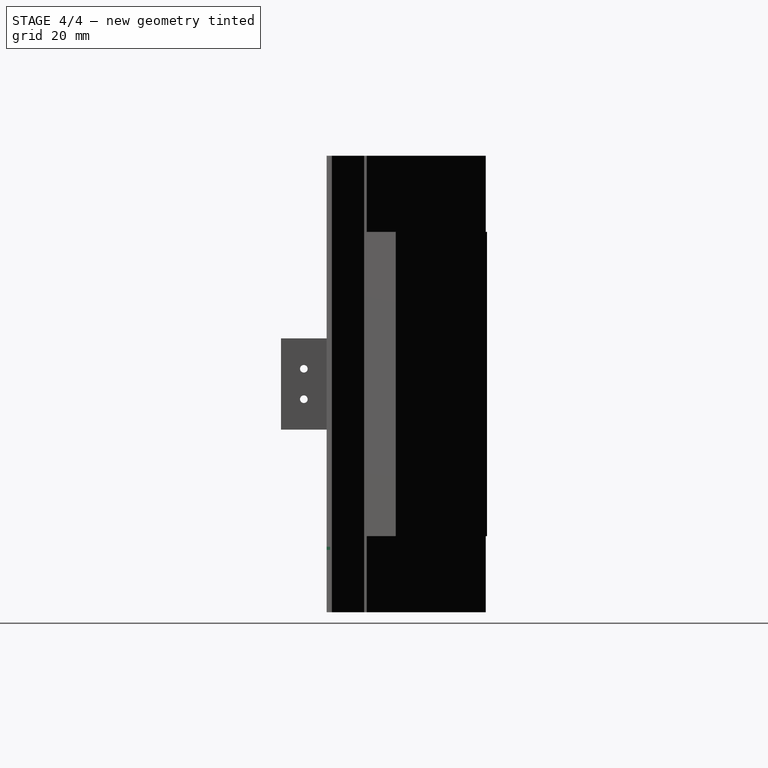
[diagram: stage 4 of 4 — right view after this stage's code; geometry added in this stage tinted green]
FEATURE [PartDesign::Pad] Pad002
  BaseFeature = -> Pocket002
  Direction = (-0.5,-0.866025,0)
  Length = 10
  Length2 = 10
  Profile = -> Sketch009
  ReferenceAxis = -> Sketch009 [N_Axis]
  Type = 0
FEATURE [Sketcher::SketchObject] Sketch008
  ExternalGeometry = -> [Pocket]
  FullyConstrained = true
  MapMode = 5
  Placement = pos=(23.1506,40.0981,-9e-16) rot=(0.186157,0.694747,0.694747;2.77349rad)
  Support = -> [Pocket002]
  sketch-geometry (3):
    g0: Circle CenterX=-23.8453 CenterY=145 CenterZ=0 NormalX=0 NormalY=0 NormalZ=1 AngleXU=0 Radius=3
    g1: Circle CenterX=-23.8453 CenterY=15 CenterZ=0 NormalX=0 NormalY=0 NormalZ=1 AngleXU=0 Radius=3
    g2: GeomPoint X=-23.8453 Y=150 Z=0
  constraints (7):
    c: Equal(g0,g1)
    c: Diameter(g0) = 6
    c: Vertical(g2,g0)
    c: DistanceY(g0,g2) = 5
    c: DistanceY(g-1,g1) = 15
    c: Vertical(g1,g2)
    c: Symmetric(g-4,g-3,g2)
FEATURE [Sketcher::SketchObject] Sketch010
  ExternalGeometry = -> [Pad002]
  FullyConstrained = true
  MapMode = 5
  Placement = pos=(-23.1506,40.0981,8.8e-15) rot=(-0.186157,0.694747,0.694747;3.50969rad)
  Support = -> [Pad002]
  sketch-geometry (3):
    g0: Circle CenterX=24.9226 CenterY=145 CenterZ=0 NormalX=0 NormalY=0 NormalZ=1 AngleXU=0 Radius=3
    g1: Circle CenterX=24.9226 CenterY=15 CenterZ=0 NormalX=0 NormalY=0 NormalZ=1 AngleXU=0 Radius=3
    g2: GeomPoint X=24.4226 Y=150 Z=0
  constraints (7):
    c: Equal(g0,g1)
    c: Diameter(g0) = 6
    c: Symmetric(g-3,g-4,g2)
    c: DistanceY(g0,g2) = 5
    c: DistanceY(g-1,g1) = 15
    c: Vertical(g0,g1)
    c: DistanceX(g2,g0) = 0.5
FEATURE [PartDesign::Hole] Hole002
  BaseFeature = -> Pad002
  CustomThreadClearance = 0
  Depth = 25
  DepthType = 0
  Diameter = 2.5
  DrillForDepth = false
  DrillPoint = 1
  DrillPointAngle = 118
  HoleCutCountersinkAngle = 90
  HoleCutCustomValues = false
  HoleCutDepth = 0
  HoleCutDiameter = 6.1
  HoleCutType = 2
  ModelThread = false
  Profile = -> Sketch010
  Tapered = false
  TaperedAngle = 90
  ThreadClass = 0
  ThreadDepth = 25
  ThreadDepthType = 0
  ThreadDirection = 0
  ThreadFit = 0
  ThreadSize = 9
  ThreadType = 1
  Threaded = true
  UseCustomThreadClearance = false
FEATURE [PartDesign::CoordinateSystem] LCS_2
  AttacherType = Attacher::AttachEngine3D
  AttachmentOffset = pos=(0,0,0) rot=(-1,0,0;1.5708rad)
  MapMode = 45
  Placement = pos=(45.8013,31.6395,125) rot=(0,0,1;1.0472rad)
  Support = -> [Hole002]
FEATURE [PartDesign::CoordinateSystem] LCS_3
  AttacherType = Attacher::AttachEngine3D
  AttachmentOffset = pos=(0,0,0) rot=(-1,0,0;1.5708rad)
  MapMode = 45
  Placement = pos=(-46.1852,31.1499,125) rot=(0,0,1;2.0858rad)
  Support = -> [Hole002]
FEATURE [PartDesign::Body] Body  label="MiddlePartialBody"
  Group = -> [Sketch,Pad,Sketch001,Pocket,LCS_1,Sketch002,Sketch003,Sketch004,Sketch005,Sketch006,Sketch007,Sketch008,Sketch009,Pad001,Hole,Hole001,Pocket001,Pocket002,Pad002,Sketch010,Hole002,LCS_2,LCS_3]
  Origin = -> Origin
  Tip = -> Hole002
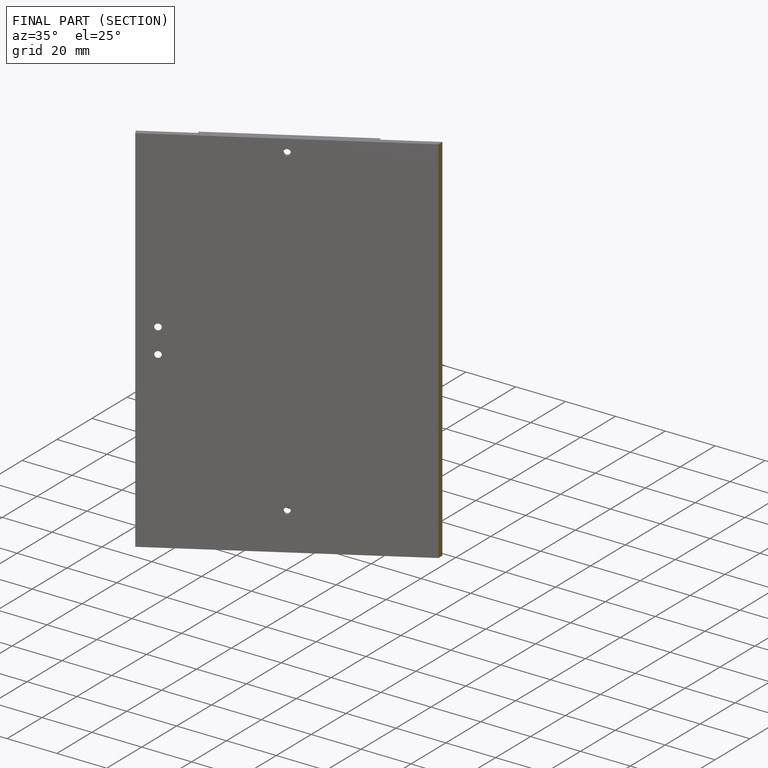
[diagram: finished part — half-section view (interior)]
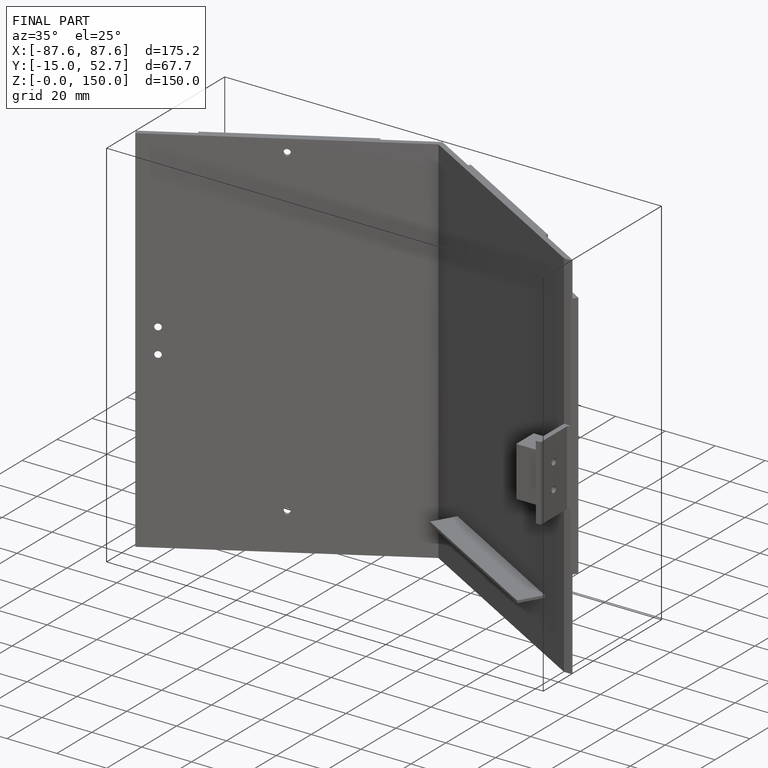
[diagram: finished part — iso view with bounding-box wireframe]
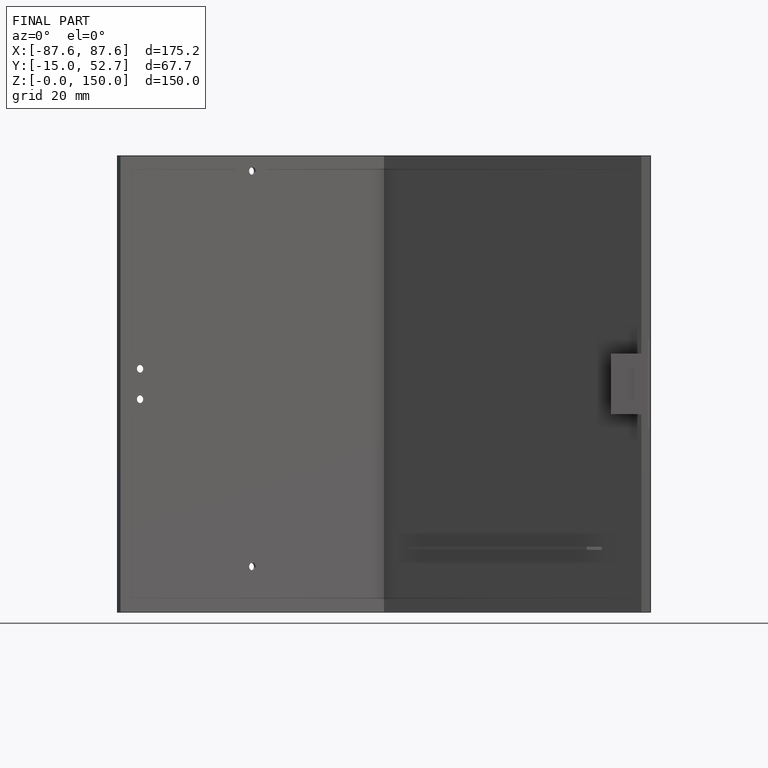
[diagram: finished part — front view with bounding-box wireframe]
